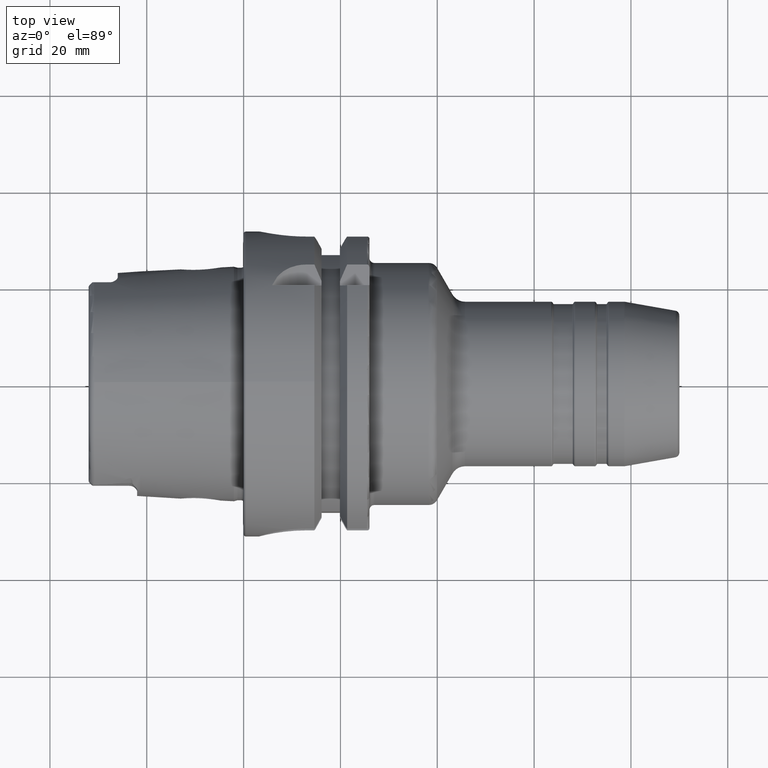
[diagram: clean part render]
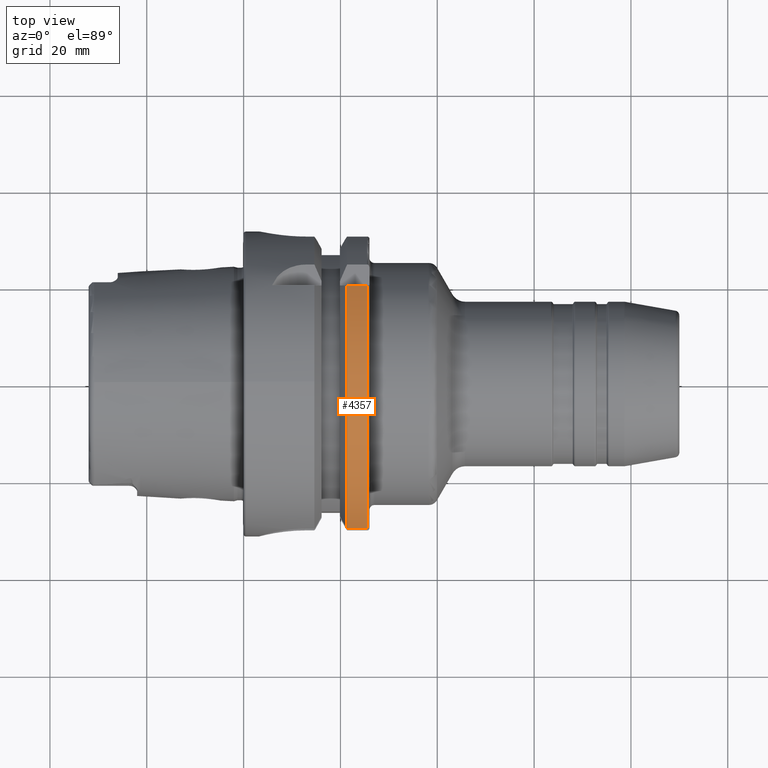
[diagram: same view with one face highlighted and labeled with its STEP entity id]
A machine part, top view. The second image highlights one B-rep face of the part: STEP entity #4357.
In plain terms, the highlighted cylindrical surface (partial cylindrical patch) has radius 31.5 mm, axis along (1, 0, 0).
Its self-contained STEP definition (entity closure, byte-faithful):
#791=DIRECTION('',(1.E0,0.E0,0.E0));
#792=VECTOR('',#791,4.122500945915E0);
#793=CARTESIAN_POINT('',(2.137749905409E1,-3.007314630073E1,9.373146300730E0));
#794=LINE('',#793,#792);
#795=DIRECTION('',(1.E0,0.E0,0.E0));
#796=VECTOR('',#795,4.122500945915E0);
#797=CARTESIAN_POINT('',(2.137749905409E1,2.E1,2.433618704728E1));
#798=LINE('',#797,#796);
#2085=CARTESIAN_POINT('',(2.55E1,-3.007314630073E1,9.373146300730E0));
#2236=CARTESIAN_POINT('',(2.137749905409E1,-3.007314630073E1,9.373146300730E0));
#2259=CARTESIAN_POINT('',(2.137749905409E1,2.E1,2.433618704728E1));
#2261=CARTESIAN_POINT('',(2.137749905409E1,0.E0,0.E0));
#2262=DIRECTION('',(1.E0,0.E0,0.E0));
#2263=DIRECTION('',(0.E0,6.349206349206E-1,7.725773665802E-1));
#2264=AXIS2_PLACEMENT_3D('',#2261,#2262,#2263);
#2465=CARTESIAN_POINT('',(2.55E1,2.E1,2.433618704728E1));
#2482=CARTESIAN_POINT('',(2.55E1,0.E0,0.E0));
#2483=DIRECTION('',(-1.E0,0.E0,0.E0));
#2484=DIRECTION('',(0.E0,-9.547030571660E-1,2.975602000232E-1));
#2485=AXIS2_PLACEMENT_3D('',#2482,#2483,#2484);
#2962=VERTEX_POINT('',#2259);
#3134=VERTEX_POINT('',#2236);
#3182=VERTEX_POINT('',#2465);
#3186=VERTEX_POINT('',#2085);
#4342=CARTESIAN_POINT('',(0.E0,0.E0,0.E0));
#4343=DIRECTION('',(1.E0,0.E0,0.E0));
#4344=DIRECTION('',(0.E0,0.E0,1.E0));
#4345=AXIS2_PLACEMENT_3D('',#4342,#4343,#4344);
#4346=CYLINDRICAL_SURFACE('',#4345,3.15E1);
#4348=ORIENTED_EDGE('',*,*,#4347,.F.);
#4350=ORIENTED_EDGE('',*,*,#4349,.F.);
#4352=ORIENTED_EDGE('',*,*,#4351,.F.);
#4354=ORIENTED_EDGE('',*,*,#4353,.T.);
#4355=EDGE_LOOP('',(#4348,#4350,#4352,#4354));
#4356=FACE_OUTER_BOUND('',#4355,.F.);
#4357=ADVANCED_FACE('',(#4356),#4346,.T.);
#2265=CIRCLE('',#2264,3.15E1);
#2486=CIRCLE('',#2485,3.15E1);
#4347=EDGE_CURVE('',#3186,#3182,#2486,.T.);
#4349=EDGE_CURVE('',#3134,#3186,#794,.T.);
#4351=EDGE_CURVE('',#2962,#3134,#2265,.T.);
#4353=EDGE_CURVE('',#2962,#3182,#798,.T.);